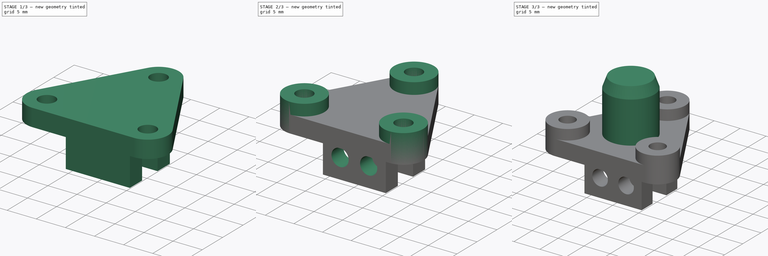
[diagram: build sequence overview — one tinted view per stage of 3, left to right]
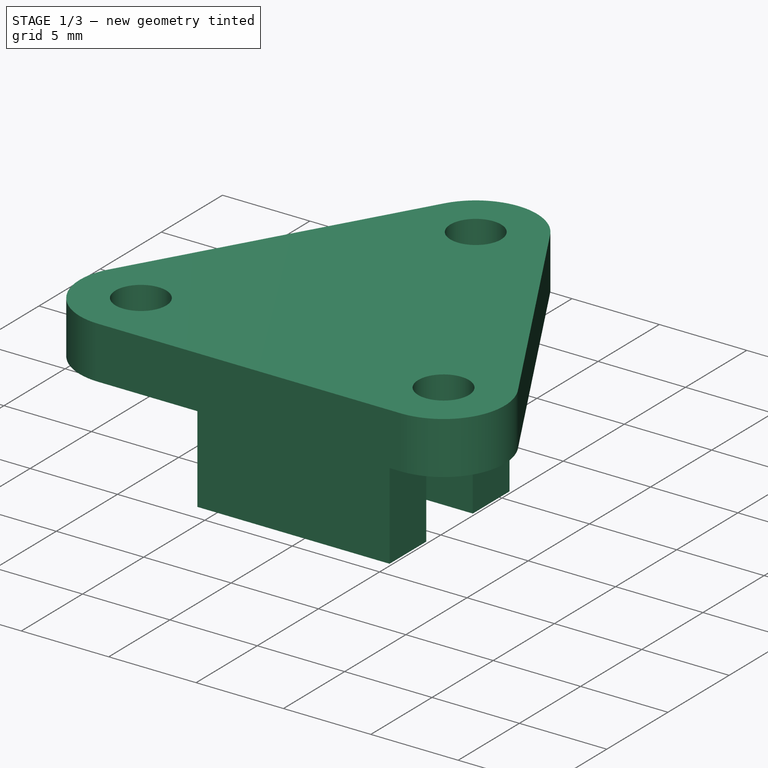
[diagram: stage 1 of 3 — iso view after this stage's code; geometry added in this stage tinted green]
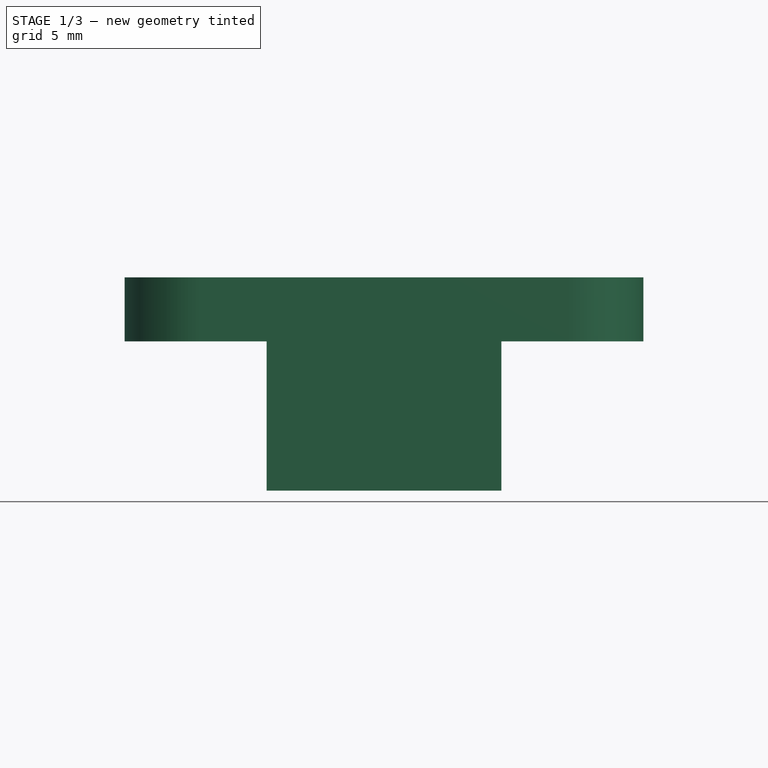
[diagram: stage 1 of 3 — front view after this stage's code; geometry added in this stage tinted green]
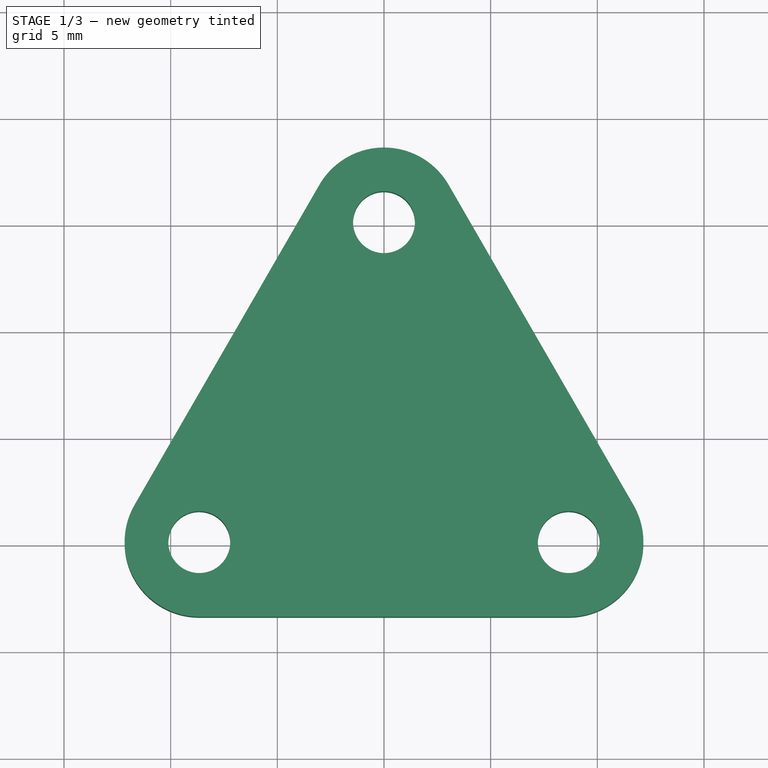
[diagram: stage 1 of 3 — top view after this stage's code; geometry added in this stage tinted green]
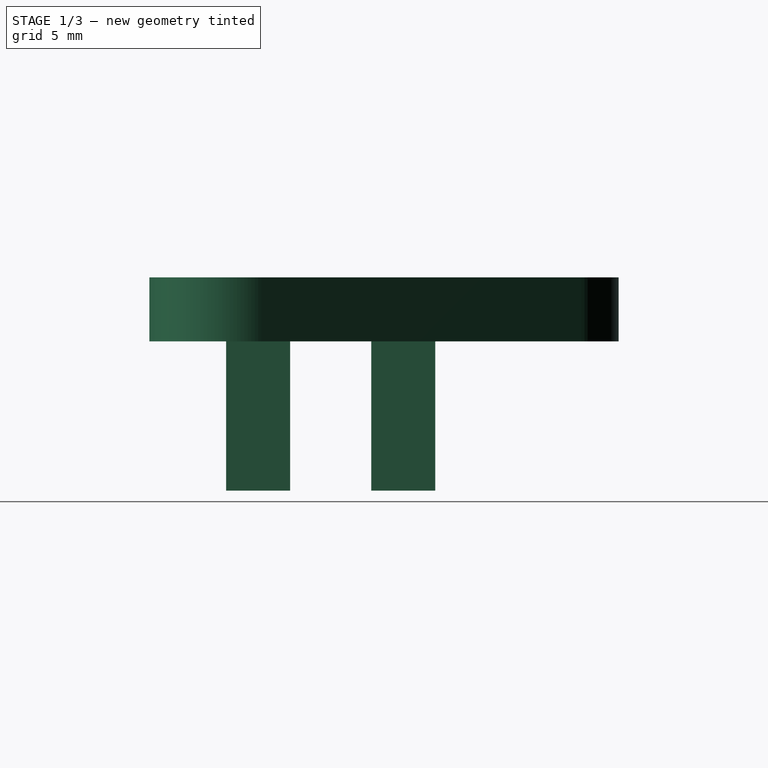
[diagram: stage 1 of 3 — right view after this stage's code; geometry added in this stage tinted green]
FCSTD DOCUMENT  (FreeCAD 1.0R39109 (Git))
Label: BackWheelConnector
License: All rights reserved
LicenseURL: https://en.wikipedia.org/wiki/All_rights_reserved
objects: Sketcher::SketchObject×5, PartDesign::Pad×4, PartDesign::Pocket×1, PartDesign::Chamfer×1, PartDesign::Body×1, App::Part×1
note: 29 computed .brp shape members not serialized (recipe doc carries the construction recipe); baked Part::Feature solids carry a one-line shape summary decoded from their .brp

FEATURE [Sketcher::SketchObject] Sketch
  ArcFitTolerance = 1e-06
  AttachmentSupport = -> [XY_Plane001]
  FullyConstrained = true
  MakeInternals = false
  MapMode = 5
  sketch-geometry (13):
    g0: LineSegment [constr] StartX=0 StartY=10 StartZ=0 EndX=-8.66025 EndY=-5 EndZ=0
    g1: LineSegment [constr] StartX=-8.66025 StartY=-5 StartZ=0 EndX=8.66025 EndY=-5 EndZ=0
    g2: LineSegment [constr] StartX=8.66025 StartY=-5 StartZ=0 EndX=0 EndY=10 EndZ=0
    g3: Circle [constr] CenterX=0 CenterY=0 CenterZ=0 NormalX=0 NormalY=0 NormalZ=1 AngleXU=0 Radius=10
    g4: Circle CenterX=0 CenterY=10 CenterZ=0 NormalX=0 NormalY=0 NormalZ=1 AngleXU=0 Radius=1.45
    g5: Circle CenterX=8.66025 CenterY=-5 CenterZ=0 NormalX=0 NormalY=0 NormalZ=1 AngleXU=0 Radius=1.45
    g6: Circle CenterX=-8.66025 CenterY=-5 CenterZ=0 NormalX=0 NormalY=0 NormalZ=1 AngleXU=0 Radius=1.45
    g7: ArcOfCircle CenterX=0 CenterY=10 CenterZ=0 NormalX=0 NormalY=0 NormalZ=1 AngleXU=0 Radius=3.5 StartAngle=0.523599 EndAngle=2.61799
    g8: ArcOfCircle CenterX=8.66025 CenterY=-5 CenterZ=0 NormalX=0 NormalY=0 NormalZ=1 AngleXU=0 Radius=3.5 StartAngle=4.71239 EndAngle=6.80678
    g9: ArcOfCircle CenterX=-8.66025 CenterY=-5 CenterZ=0 NormalX=0 NormalY=0 NormalZ=1 AngleXU=0 Radius=3.5 StartAngle=2.61799 EndAngle=4.71239
    g10: LineSegment StartX=3.03109 StartY=11.75 StartZ=0 EndX=11.6913 EndY=-3.25 EndZ=0
    g11: LineSegment StartX=8.66025 StartY=-8.5 StartZ=0 EndX=-8.66025 EndY=-8.5 EndZ=0
    g12: LineSegment StartX=-11.6913 StartY=-3.25 StartZ=0 EndX=-3.03109 EndY=11.75 EndZ=0
  constraints (29):
    c: Coincident(g0,g1)
    c: Coincident(g1,g2)
    c: Coincident(g2,g0)
    c: Equal(g0,g1)
    c: Equal(g0,g2)
    c: PointOnObject(g0,g3)
    c: PointOnObject(g1,g3)
    c: PointOnObject(g2,g3)
    c: Radius(g3) = 10
    c: Coincident(g3,g-1)
    c: PointOnObject(g2,g-2)
    c: Diameter(g4) = 2.9
    c: Coincident(g4,g0)
    c: Coincident(g5,g1)
    c: Coincident(g6,g0)
    c: Equal(g4,g5)
    c: Equal(g5,g6)
    c: Coincident(g7,g0)
    c: Coincident(g8,g1)
    c: Coincident(g9,g0)
    c: Tangent(g10,g7) = 1.5708
    c: Tangent(g10,g8) = 1.5708
    c: Tangent(g11,g9) = 1.5708
    c: Tangent(g11,g8) = 1.5708
    c: Tangent(g12,g9) = 1.5708
    c: Tangent(g12,g7) = 1.5708
    c: Equal(g7,g8)
    c: Equal(g8,g9)
    c: Radius(g7) = 3.5
FEATURE [PartDesign::Pad] Pad
  Direction = (0,0,1)
  Length = 3
  Length2 = 10
  Profile = -> Sketch
  ReferenceAxis = -> Sketch [N_Axis]
  Refine = true
  Suppressed = false
  Type = 0
FEATURE [Sketcher::SketchObject] Sketch001
  ArcFitTolerance = 1e-06
  AttachmentSupport = -> [Pad]
  FullyConstrained = true
  MakeInternals = false
  MapMode = 5
  Placement = pos=(0,0,0) rot=(1,0,0;3.14159rad)
  sketch-geometry (10):
    g0: LineSegment StartX=-5.5 StartY=1.9 StartZ=0 EndX=5.5 EndY=1.9 EndZ=0
    g1: LineSegment StartX=5.5 StartY=1.9 StartZ=0 EndX=5.5 EndY=4.9 EndZ=0
    g2: LineSegment StartX=5.5 StartY=4.9 StartZ=0 EndX=-5.5 EndY=4.9 EndZ=0
    g3: LineSegment StartX=-5.5 StartY=4.9 StartZ=0 EndX=-5.5 EndY=1.9 EndZ=0
    g4: GeomPoint [constr] X=0 Y=3.4 Z=0
    g5: LineSegment StartX=-5.5 StartY=-4.9 StartZ=0 EndX=5.5 EndY=-4.9 EndZ=0
    g6: LineSegment StartX=5.5 StartY=-4.9 StartZ=0 EndX=5.5 EndY=-1.9 EndZ=0
    g7: LineSegment StartX=5.5 StartY=-1.9 StartZ=0 EndX=-5.5 EndY=-1.9 EndZ=0
    g8: LineSegment StartX=-5.5 StartY=-1.9 StartZ=0 EndX=-5.5 EndY=-4.9 EndZ=0
    g9: GeomPoint [constr] X=0 Y=-3.4 Z=0
  constraints (25):
    c: Coincident(g0,g1)
    c: Coincident(g1,g2)
    c: Coincident(g2,g3)
    c: Coincident(g3,g0)
    c: Horizontal(g0)
    c: Horizontal(g2)
    c: Vertical(g1)
    c: Vertical(g3)
    c: Symmetric(g2,g0,g4)
    c: Distance(g1,g3) = 11
    c: Distance(g0,g2) = 3
    c: PointOnObject(g4,g-2)
    c: Coincident(g5,g6)
    c: Coincident(g6,g7)
    c: Coincident(g7,g8)
    c: Coincident(g8,g5)
    c: Horizontal(g5)
    c: Horizontal(g7)
    c: Vertical(g6)
    c: Vertical(g8)
    c: Symmetric(g7,g5,g9)
    c: PointOnObject(g9,g-2)
    c: Equal(g3,g8)
    c: Symmetric(g7,g0,g-1)
    c: Distance(g7,g0) = 3.8
FEATURE [PartDesign::Pad] Pad001
  BaseFeature = -> Pad
  Direction = (0,0,-1)
  Length = 7
  Length2 = 10
  Profile = -> Sketch001
  ReferenceAxis = -> Sketch001 [N_Axis]
  Refine = true
  Suppressed = false
  Type = 0
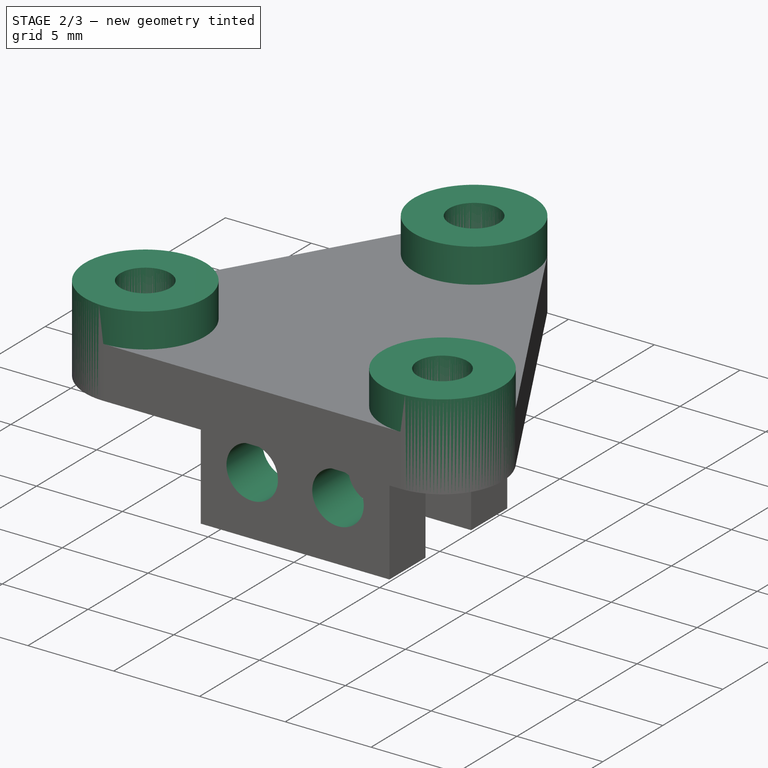
[diagram: stage 2 of 3 — iso view after this stage's code; geometry added in this stage tinted green]
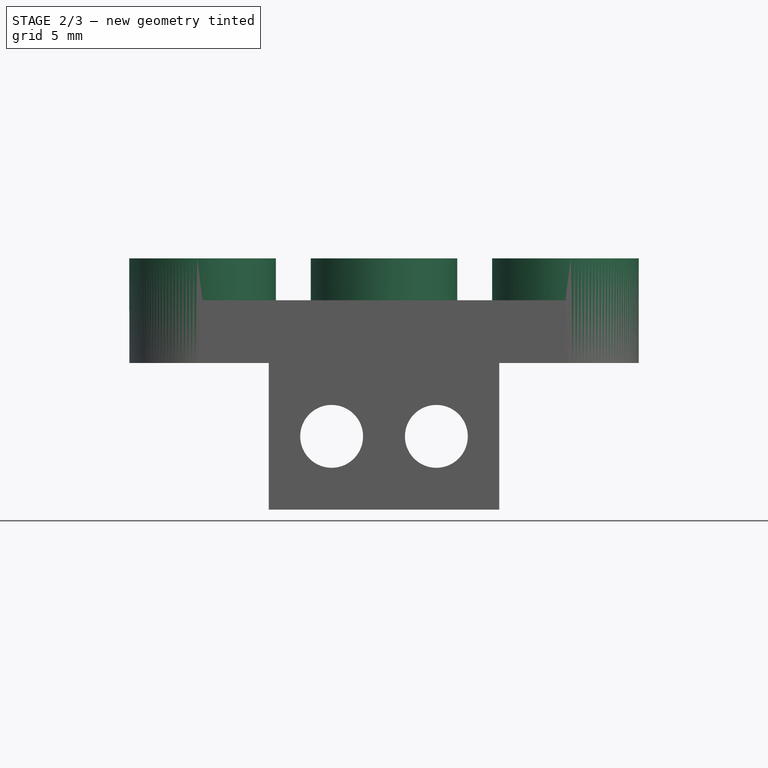
[diagram: stage 2 of 3 — front view after this stage's code; geometry added in this stage tinted green]
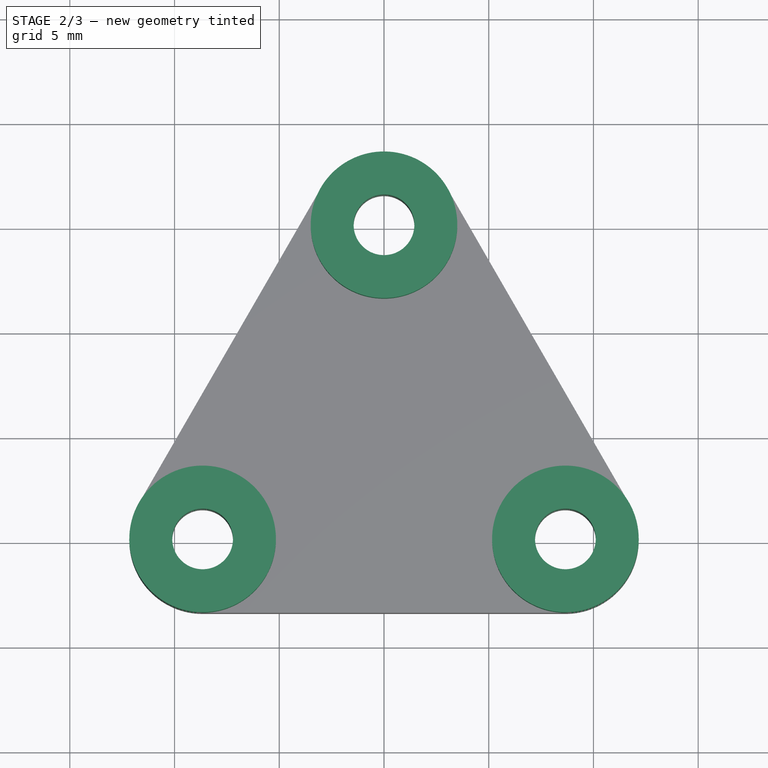
[diagram: stage 2 of 3 — top view after this stage's code; geometry added in this stage tinted green]
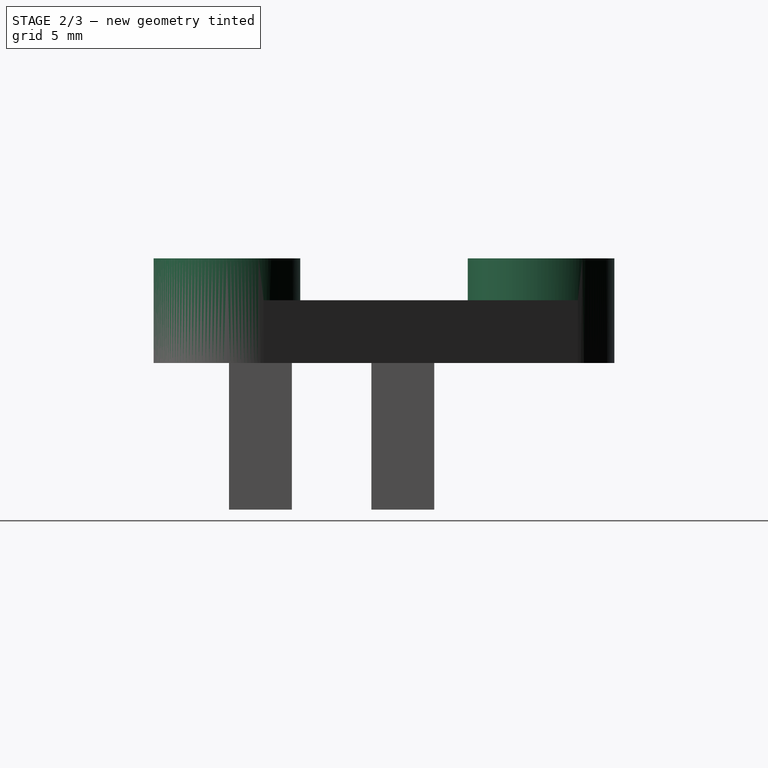
[diagram: stage 2 of 3 — right view after this stage's code; geometry added in this stage tinted green]
FEATURE [Sketcher::SketchObject] Sketch002
  ArcFitTolerance = 1e-06
  AttachmentSupport = -> [Pad001]
  ExternalGeometry = -> [Pad001]
  FullyConstrained = true
  MakeInternals = false
  MapMode = 5
  Placement = pos=(0,4.9,0) rot=(0,0.707107,0.707107;3.14159rad)
  sketch-geometry (2):
    g0: Circle CenterX=-2.5 CenterY=-3.5 CenterZ=0 NormalX=0 NormalY=0 NormalZ=1 AngleXU=0 Radius=1.5
    g1: Circle CenterX=2.5 CenterY=-3.5 CenterZ=0 NormalX=0 NormalY=0 NormalZ=1 AngleXU=0 Radius=1.5
  constraints (5):
    c: Diameter(g0) = 3
    c: Equal(g0,g1)
    c: Symmetric(g0,g1,g-2)
    c: Distance(g0,g-3) = 3.5
    c: DistanceX(g0,g1) = 5
FEATURE [PartDesign::Pocket] Pocket
  BaseFeature = -> Pad001
  Direction = (0,-1,2e-16)
  Length = 0
  Length2 = 5
  Profile = -> Sketch002
  ReferenceAxis = -> Sketch002 [N_Axis]
  Refine = true
  Suppressed = false
  Type = 3
  UpToFace = -> Pad001 [Face11]
FEATURE [Sketcher::SketchObject] Sketch003
  ArcFitTolerance = 1e-06
  AttachmentSupport = -> [Pocket]
  ExternalGeometry = -> [Sketch]
  FullyConstrained = true
  MakeInternals = false
  MapMode = 5
  Placement = pos=(0,0,3) rot=(0,0,1;0rad)
  sketch-geometry (6):
    g0: Circle CenterX=0 CenterY=10 CenterZ=0 NormalX=0 NormalY=0 NormalZ=1 AngleXU=0 Radius=1.45
    g1: Circle CenterX=8.66025 CenterY=-5 CenterZ=0 NormalX=0 NormalY=0 NormalZ=1 AngleXU=0 Radius=1.45
    g2: Circle CenterX=-8.66025 CenterY=-5 CenterZ=0 NormalX=0 NormalY=0 NormalZ=1 AngleXU=0 Radius=1.45
    g3: Circle CenterX=0 CenterY=10 CenterZ=0 NormalX=0 NormalY=0 NormalZ=1 AngleXU=0 Radius=3.5
    g4: Circle CenterX=8.66025 CenterY=-5 CenterZ=0 NormalX=0 NormalY=0 NormalZ=1 AngleXU=0 Radius=3.5
    g5: Circle CenterX=-8.66025 CenterY=-5 CenterZ=0 NormalX=0 NormalY=0 NormalZ=1 AngleXU=0 Radius=3.5
  constraints (12):
    c: Coincident(g0,g-6)
    c: Coincident(g1,g-7)
    c: Coincident(g2,g-8)
    c: Equal(g0,g-3)
    c: Equal(g1,g-4)
    c: Equal(g2,g-5)
    c: Coincident(g3,g0)
    c: PointOnObject(g-6,g3)
    c: Coincident(g4,g1)
    c: PointOnObject(g-7,g4)
    c: Coincident(g5,g2)
    c: PointOnObject(g-8,g5)
FEATURE [PartDesign::Pad] Pad002
  BaseFeature = -> Pocket
  Direction = (0,0,1)
  Length = 2
  Length2 = 10
  Profile = -> Sketch003
  ReferenceAxis = -> Sketch003 [N_Axis]
  Refine = true
  Suppressed = false
  Type = 0
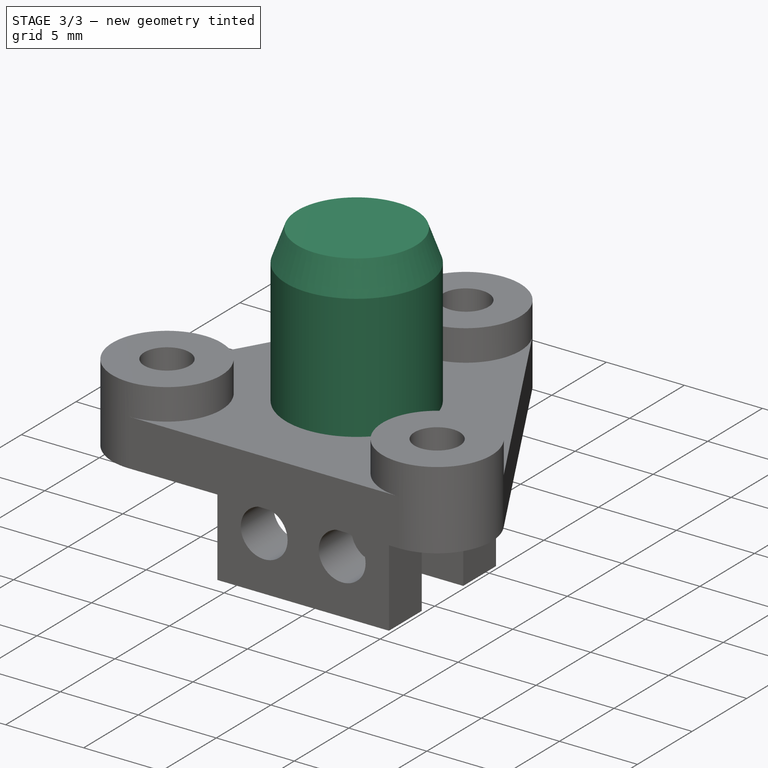
[diagram: stage 3 of 3 — iso view after this stage's code; geometry added in this stage tinted green]
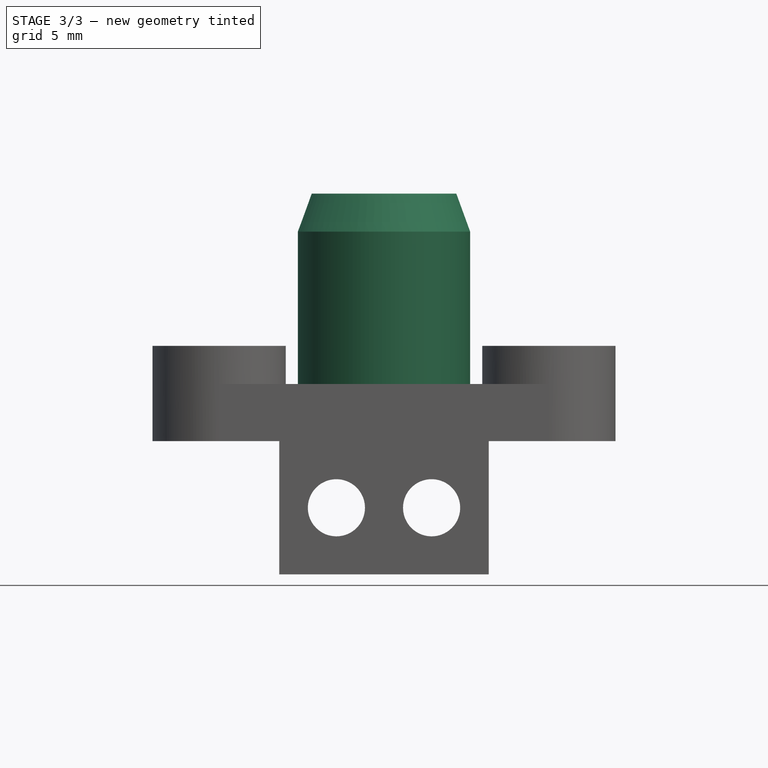
[diagram: stage 3 of 3 — front view after this stage's code; geometry added in this stage tinted green]
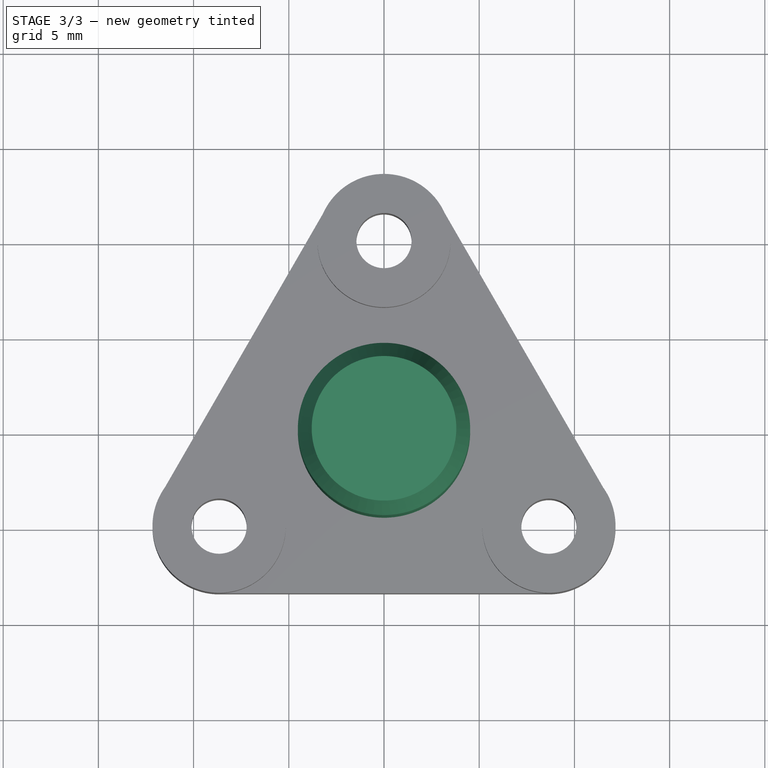
[diagram: stage 3 of 3 — top view after this stage's code; geometry added in this stage tinted green]
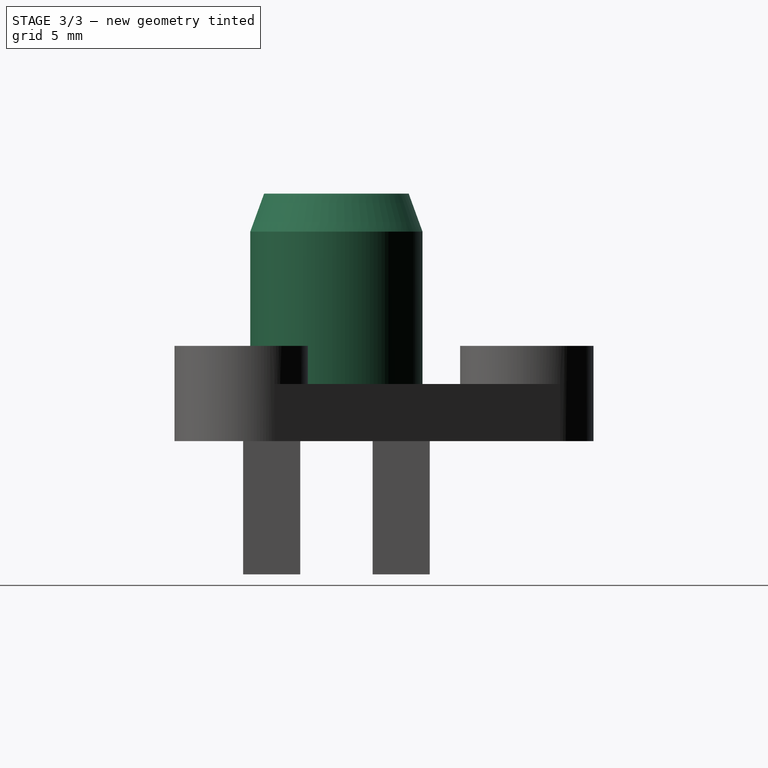
[diagram: stage 3 of 3 — right view after this stage's code; geometry added in this stage tinted green]
FEATURE [Sketcher::SketchObject] Sketch004
  ArcFitTolerance = 1e-06
  AttachmentSupport = -> [Pad002]
  FullyConstrained = true
  MakeInternals = false
  MapMode = 5
  Placement = pos=(0,0,3) rot=(0,0,1;0rad)
  sketch-geometry (1):
    g0: Circle CenterX=0 CenterY=0 CenterZ=0 NormalX=0 NormalY=0 NormalZ=1 AngleXU=0 Radius=4.525
  constraints (2):
    c: Diameter(g0) = 9.05
    c: Coincident(g0,g-1)
FEATURE [PartDesign::Pad] Pad003
  BaseFeature = -> Pad002
  Direction = (0,0,1)
  Length = 10
  Length2 = 10
  Profile = -> Sketch004
  ReferenceAxis = -> Sketch004 [N_Axis]
  Refine = true
  Suppressed = false
  Type = 0
FEATURE [PartDesign::Chamfer] Chamfer
  Angle = 20
  Base = -> Pad003 [Edge71]
  BaseFeature = -> Pad003
  ChamferType = 2
  FlipDirection = false
  Refine = true
  Size = 2
  Size2 = 1
  SupportTransform = false
  Suppressed = false
  UseAllEdges = false
FEATURE [PartDesign::Body] Body  label="BackWheelConnectorBody"
  AllowCompound = false
  Group = -> [Sketch,Pad,Sketch001,Pad001,Sketch002,Pocket,Sketch003,Pad002,Sketch004,Pad003,Chamfer]
  Origin = -> Origin001
  Tip = -> Chamfer
FEATURE [App::Part] Part  label="BackWheelConnectorPart"
  Group = -> [Body]
  Origin = -> Origin
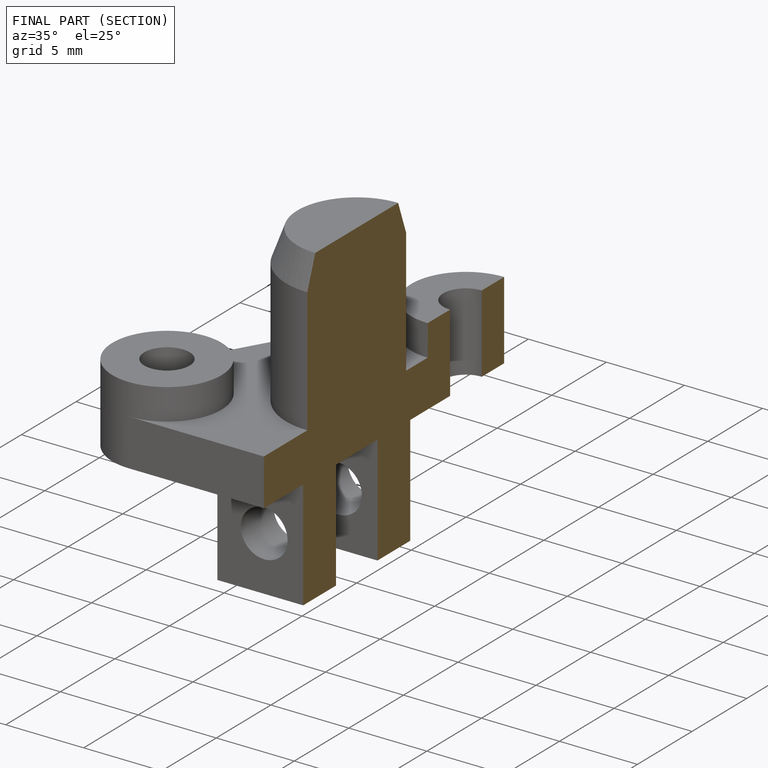
[diagram: finished part — half-section view (interior)]
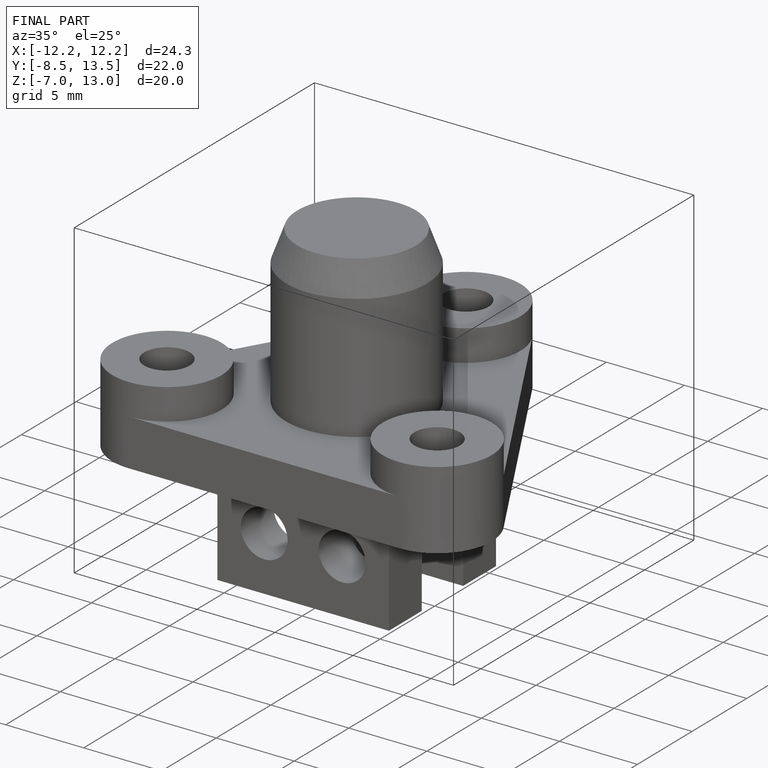
[diagram: finished part — iso view with bounding-box wireframe]
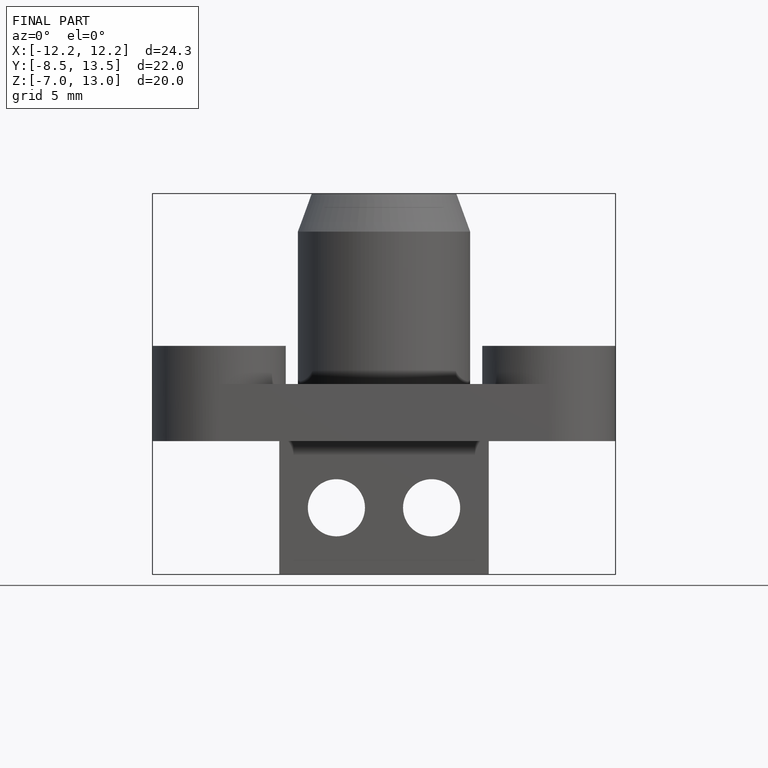
[diagram: finished part — front view with bounding-box wireframe]
